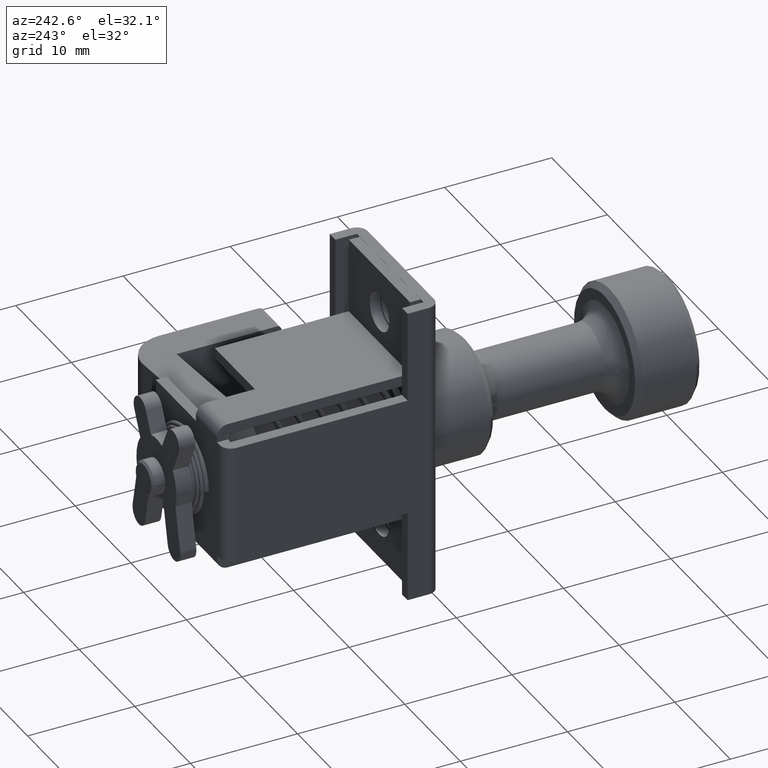
[diagram: clean part render]
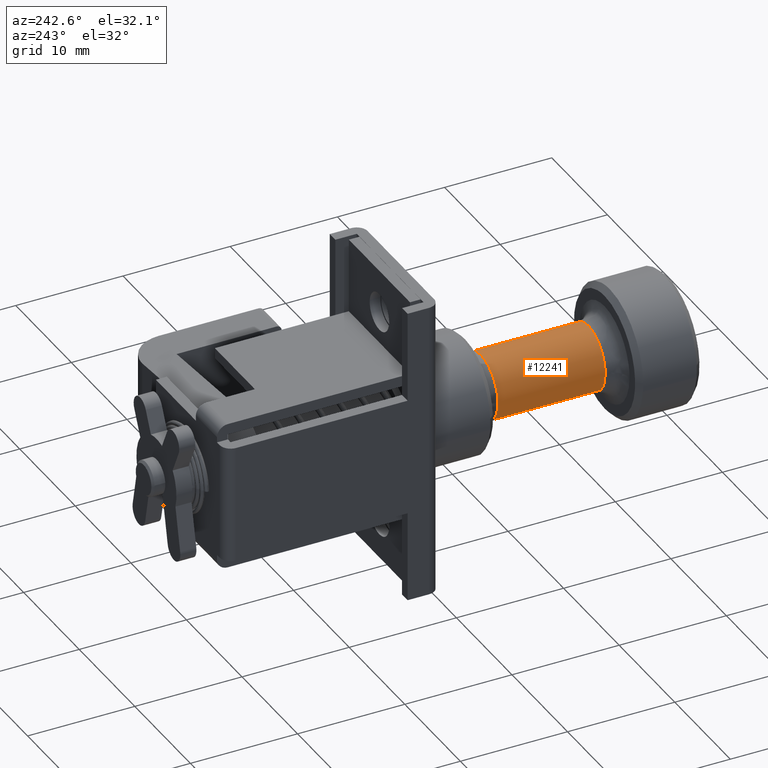
[diagram: same view with one face highlighted and labeled with its STEP entity id]
A machine part, auxiliary view. The second image highlights one B-rep face of the part: STEP entity #12241.
In plain terms, the highlighted face is a freeform B-spline surface patch.
Its self-contained STEP definition (entity closure, byte-faithful):
#12115=CARTESIAN_POINT('',(-7.249999999691973,-2.054455458236623,2.186141068211551));
#12116=CARTESIAN_POINT('',(-7.249999999691973,0.010034379637314,4.126273147320231));
#12117=CARTESIAN_POINT('',(-7.249999999691973,2.065063727081193,2.176123113036790));
#12118=CARTESIAN_POINT('',(-7.249999999691972,4.241186840117982,0.111059385955597));
#12119=CARTESIAN_POINT('',(-7.249999999691973,2.176123113036790,-2.065063727081193));
#12120=CARTESIAN_POINT('',(-17.756250000026853,-2.054455458236623,2.186141068211551));
#12121=CARTESIAN_POINT('',(-17.756250000026849,0.010034379637314,4.126273147320231));
#12122=CARTESIAN_POINT('',(-17.756250000026849,2.065063727081193,2.176123113036790));
#12123=CARTESIAN_POINT('',(-17.756250000026849,4.241186840117982,0.111059385955597));
#12124=CARTESIAN_POINT('',(-17.756250000026849,2.176123113036790,-2.065063727081193));
#12132=(BOUNDED_SURFACE()B_SPLINE_SURFACE(2,1,((#12115,#12120),(#12116,#12121),(#12117,#12122),(#12118,#12123),(#12119,#12124)),.UNSPECIFIED.,.F.,.F.,.U.)B_SPLINE_SURFACE_WITH_KNOTS((3,2,3),(2,2),(0.0,4.771740238537894,9.742302987014867),(0.0,10.506250000334880),.UNSPECIFIED.)GEOMETRIC_REPRESENTATION_ITEM()RATIONAL_B_SPLINE_SURFACE(((0.977505800795127,0.977505800795127),(0.718822509939086,0.718822509939086),(1.0,1.0),(0.707106781186548,0.707106781186548),(1.0,1.0)))REPRESENTATION_ITEM('')SURFACE());
#12133=CARTESIAN_POINT('',(-17.500000000000011,-2.054455104701528,2.186141400450802));
#12134=VERTEX_POINT('',#12133);
#12135=CARTESIAN_POINT('',(-17.500000000000000,0.0,2.999999999999901));
#12136=VERTEX_POINT('',#12135);
#12137=CARTESIAN_POINT('',(-17.500000000000004,-2.054455104701528,2.186141400450802));
#12138=CARTESIAN_POINT('',(-17.500000000000000,-1.188429582371301,2.999999999999901));
#12139=CARTESIAN_POINT('',(-17.500000000000000,0.0,2.999999999999901));
#12147=(BOUNDED_CURVE()B_SPLINE_CURVE(2,(#12137,#12138,#12139),.UNSPECIFIED.,.F.,.U.)B_SPLINE_CURVE_WITH_KNOTS((3,3),(0.879684539792634,1.0),.UNSPECIFIED.)CURVE()GEOMETRIC_REPRESENTATION_ITEM()RATIONAL_B_SPLINE_CURVE((0.853759071112483,0.859041670347371,1.0))REPRESENTATION_ITEM(''));
#12148=EDGE_CURVE('',#12134,#12136,#12147,.T.);
#12149=ORIENTED_EDGE('',*,*,#12148,.F.);
#12150=CARTESIAN_POINT('',(-7.500000000000000,-2.054455109063916,2.186141396351193));
#12151=VERTEX_POINT('',#12150);
#12152=CARTESIAN_POINT('',(-7.500000000000000,-2.054455109063916,2.186141396351193));
#12153=CARTESIAN_POINT('',(-17.500000000000011,-2.054455104701528,2.186141400450802));
#12154=QUASI_UNIFORM_CURVE('',1,(#12152,#12153),.UNSPECIFIED.,.F.,.U.);
#12155=EDGE_CURVE('',#12151,#12134,#12154,.T.);
#12156=ORIENTED_EDGE('',*,*,#12155,.F.);
#12157=CARTESIAN_POINT('',(-7.500000000000000,0.0,2.999999999999901));
#12158=VERTEX_POINT('',#12157);
#12159=CARTESIAN_POINT('',(-7.500000000000000,-2.054455109063916,2.186141396351193));
#12160=CARTESIAN_POINT('',(-7.500000000000000,-1.188429589297166,2.999999999999901));
#12161=CARTESIAN_POINT('',(-7.500000000000000,0.0,2.999999999999901));
#12169=(BOUNDED_CURVE()B_SPLINE_CURVE(2,(#12159,#12160,#12161),.UNSPECIFIED.,.F.,.U.)B_SPLINE_CURVE_WITH_KNOTS((3,3),(0.879684539190302,1.0),.UNSPECIFIED.)CURVE()GEOMETRIC_REPRESENTATION_ITEM()RATIONAL_B_SPLINE_CURVE((0.853759071059591,0.859041669641694,1.0))REPRESENTATION_ITEM(''));
#12170=EDGE_CURVE('',#12151,#12158,#12169,.T.);
#12171=ORIENTED_EDGE('',*,*,#12170,.T.);
#12172=CARTESIAN_POINT('',(-7.499999999699941,2.992697021519857,0.209199754745499));
#12173=VERTEX_POINT('',#12172);
#12174=CARTESIAN_POINT('',(-7.500000000000000,0.0,2.999999999999901));
#12175=CARTESIAN_POINT('',(-7.500000000000001,2.797610541763818,2.999999999999900));
#12176=CARTESIAN_POINT('',(-7.499999999699941,2.992697021519857,0.209199754745499));
#12184=(BOUNDED_CURVE()B_SPLINE_CURVE(2,(#12174,#12175,#12176),.UNSPECIFIED.,.F.,.U.)B_SPLINE_CURVE_WITH_KNOTS((3,3),(0.0,0.237833686532930),.UNSPECIFIED.)CURVE()GEOMETRIC_REPRESENTATION_ITEM()RATIONAL_B_SPLINE_CURVE((1.0,0.721360504036402,0.972879876382404))REPRESENTATION_ITEM(''));
#12185=EDGE_CURVE('',#12158,#12173,#12184,.T.);
#12186=ORIENTED_EDGE('',*,*,#12185,.T.);
#12187=CARTESIAN_POINT('',(-7.500000000000000,2.176123500342510,-2.065063318945970));
#12188=VERTEX_POINT('',#12187);
#12189=CARTESIAN_POINT('',(-7.499999999699941,2.992697021519857,0.209199754745499));
#12190=CARTESIAN_POINT('',(-7.499999999999999,2.999999999999901,0.104727347643381));
#12191=CARTESIAN_POINT('',(-7.500000000000000,2.999999999999901,0.0));
#12192=CARTESIAN_POINT('',(-7.500000000000001,2.999999999999901,-1.196877985709682));
#12193=CARTESIAN_POINT('',(-7.500000000000001,2.176123500342511,-2.065063318945969));
#12201=(BOUNDED_CURVE()B_SPLINE_CURVE(2,(#12189,#12190,#12191,#12192,#12193),.UNSPECIFIED.,.F.,.U.)B_SPLINE_CURVE_WITH_KNOTS((3,2,3),(0.237833686532930,0.250000000000000,0.371049470050705),.UNSPECIFIED.)CURVE()GEOMETRIC_REPRESENTATION_ITEM()RATIONAL_B_SPLINE_CURVE((0.972879876382404,0.985746277150146,1.0,0.858181724324745,0.853699665561446))REPRESENTATION_ITEM(''));
#12202=EDGE_CURVE('',#12173,#12188,#12201,.T.);
#12203=ORIENTED_EDGE('',*,*,#12202,.T.);
#12204=CARTESIAN_POINT('',(-17.500000000005830,2.176123505181144,-2.065063313847110));
#12205=VERTEX_POINT('',#12204);
#12206=CARTESIAN_POINT('',(-7.500000000000000,2.176123500342510,-2.065063318945970));
#12207=CARTESIAN_POINT('',(-17.500000000005830,2.176123505181144,-2.065063313847110));
#12208=QUASI_UNIFORM_CURVE('',1,(#12206,#12207),.UNSPECIFIED.,.F.,.U.);
#12209=EDGE_CURVE('',#12188,#12205,#12208,.T.);
#12210=ORIENTED_EDGE('',*,*,#12209,.T.);
#12211=CARTESIAN_POINT('',(-17.500000000018680,2.999999999999900,2.066276E-017));
#12212=VERTEX_POINT('',#12211);
#12213=CARTESIAN_POINT('',(-17.500000000018680,2.999999999999900,2.066276E-017));
#12214=CARTESIAN_POINT('',(-17.500000000011227,2.999999999999900,-1.196877977561559));
#12215=CARTESIAN_POINT('',(-17.500000000005830,2.176123505181143,-2.065063313847110));
#12223=(BOUNDED_CURVE()B_SPLINE_CURVE(2,(#12213,#12214,#12215),.UNSPECIFIED.,.F.,.U.)B_SPLINE_CURVE_WITH_KNOTS((3,3),(0.250000000000000,0.371049469343493),.UNSPECIFIED.)CURVE()GEOMETRIC_REPRESENTATION_ITEM()RATIONAL_B_SPLINE_CURVE((1.0,0.858181725153296,0.853699665613817))REPRESENTATION_ITEM(''));
#12224=EDGE_CURVE('',#12212,#12205,#12223,.T.);
#12225=ORIENTED_EDGE('',*,*,#12224,.F.);
#12226=CARTESIAN_POINT('',(-17.500000000000000,0.0,2.999999999999901));
#12227=CARTESIAN_POINT('',(-17.500000000000004,2.999999999999901,2.999999999999901));
#12228=CARTESIAN_POINT('',(-17.500000000018680,2.999999999999900,2.066276E-017));
#12236=(BOUNDED_CURVE()B_SPLINE_CURVE(2,(#12226,#12227,#12228),.UNSPECIFIED.,.F.,.U.)B_SPLINE_CURVE_WITH_KNOTS((3,3),(0.0,0.250000000000000),.UNSPECIFIED.)CURVE()GEOMETRIC_REPRESENTATION_ITEM()RATIONAL_B_SPLINE_CURVE((1.0,0.707106781186547,1.0))REPRESENTATION_ITEM(''));
#12237=EDGE_CURVE('',#12136,#12212,#12236,.T.);
#12238=ORIENTED_EDGE('',*,*,#12237,.F.);
#12239=EDGE_LOOP('',(#12149,#12156,#12171,#12186,#12203,#12210,#12225,#12238));
#12240=FACE_OUTER_BOUND('',#12239,.T.);
#12241=ADVANCED_FACE('',(#12240),#12132,.T.);